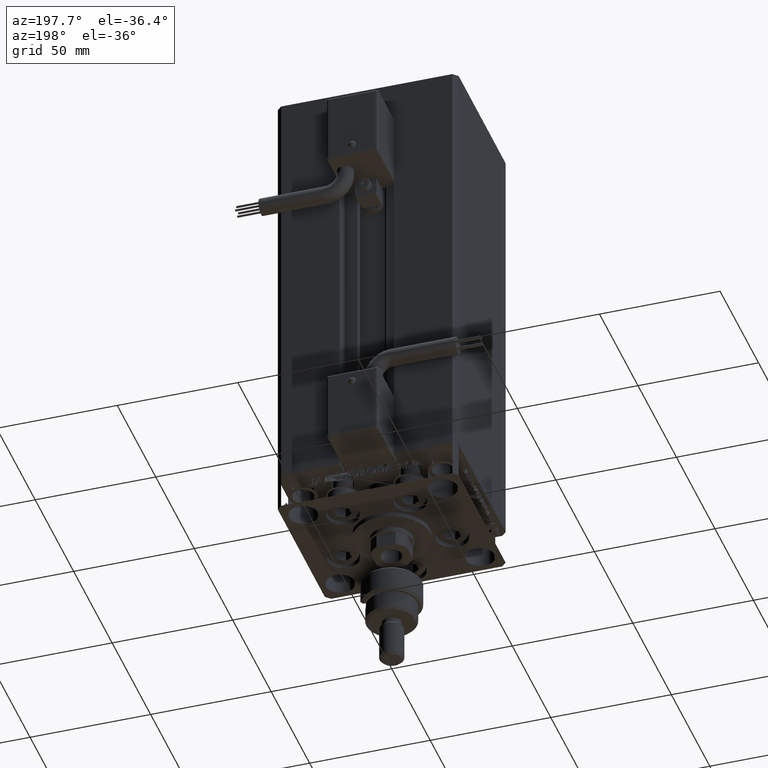
[diagram: clean part render]
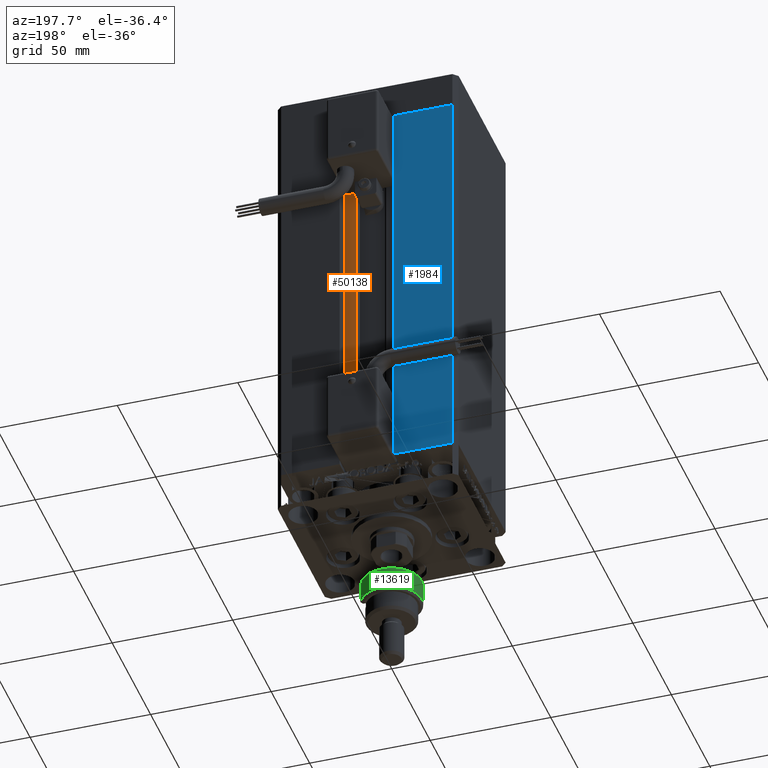
[diagram: same view with three faces highlighted in distinct colors, each labeled with its STEP entity id]
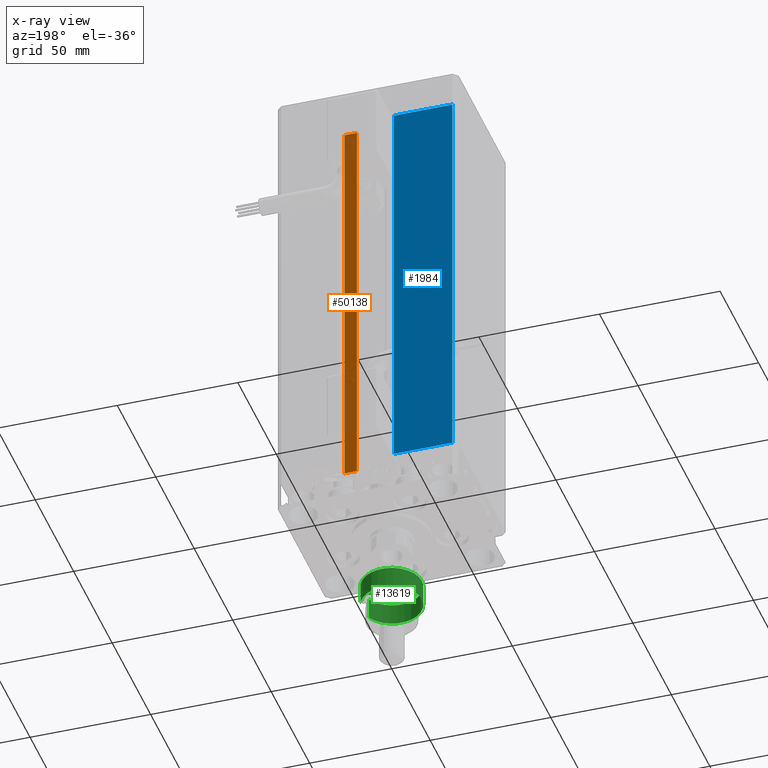
[diagram: x-ray of the same camera — body ghosted, the three highlighted faces saturated]
A machine part, auxiliary view with three faces highlighted in distinct colors.
The next image is the same camera in x-ray (body ghosted, the three faces saturated) — at least one of them is partly hidden behind the body in this view.
Their STEP definitions:

[orange] entity #50138 — the highlighted planar face has unit normal (0, -1, 0).
#411 = CARTESIAN_POINT ( 'NONE',  ( 6.183333333334001480, 25.99999999999999289, 0.000000000000000000 ) ) ;
#1431 = CARTESIAN_POINT ( 'NONE',  ( 6.183333333334001480, 25.99999999999999289, 166.0000000000000000 ) ) ;
#5465 = VERTEX_POINT ( 'NONE', #42511 ) ;
#6368 = VECTOR ( 'NONE', #8491, 1000.000000000000000 ) ;
#7154 = EDGE_CURVE ( 'NONE', #5465, #38649, #12345, .T. ) ;
#8292 = CARTESIAN_POINT ( 'NONE',  ( 6.183333333334001480, 25.99999999999999289, 0.000000000000000000 ) ) ;
#8491 = DIRECTION ( 'NONE',  ( 1.000000000000000000, 0.000000000000000000, 0.000000000000000000 ) ) ;
#8829 = DIRECTION ( 'NONE',  ( -0.000000000000000000, -0.000000000000000000, 1.000000000000000000 ) ) ;
#9480 = EDGE_CURVE ( 'NONE', #25070, #47632, #26131, .T. ) ;
#10361 = ORIENTED_EDGE ( 'NONE', *, *, #25032, .F. ) ;
#10622 = ORIENTED_EDGE ( 'NONE', *, *, #51958, .F. ) ;
#11697 = VECTOR ( 'NONE', #8829, 1000.000000000000000 ) ;
#12345 = LINE ( 'NONE', #8292, #11697 ) ;
#12820 = VECTOR ( 'NONE', #30191, 1000.000000000000000 ) ;
#16602 = ORIENTED_EDGE ( 'NONE', *, *, #7154, .T. ) ;
#17311 = VECTOR ( 'NONE', #44072, 1000.000000000000000 ) ;
#18928 = CARTESIAN_POINT ( 'NONE',  ( 11.25000000000000178, 25.99999999999999289, 166.0000000000000000 ) ) ;
#19913 = PLANE ( 'NONE',  #29287 ) ;
#23961 = FACE_OUTER_BOUND ( 'NONE', #42902, .T. ) ;
#25032 = EDGE_CURVE ( 'NONE', #5465, #25070, #25510, .T. ) ;
#25070 = VERTEX_POINT ( 'NONE', #42011 ) ;
#25510 = LINE ( 'NONE', #411, #6368 ) ;
#26131 = LINE ( 'NONE', #46965, #12820 ) ;
#26455 = ORIENTED_EDGE ( 'NONE', *, *, #9480, .F. ) ;
#29287 = AXIS2_PLACEMENT_3D ( 'NONE', #48857, #44789, #36670 ) ;
#30191 = DIRECTION ( 'NONE',  ( -0.000000000000000000, -0.000000000000000000, 1.000000000000000000 ) ) ;
#31628 = CARTESIAN_POINT ( 'NONE',  ( 0.000000000000000000, 25.99999999999999289, 166.0000000000000000 ) ) ;
#36670 = DIRECTION ( 'NONE',  ( 0.000000000000000000, -0.000000000000000000, -1.000000000000000000 ) ) ;
#38649 = VERTEX_POINT ( 'NONE', #1431 ) ;
#40278 = LINE ( 'NONE', #31628, #17311 ) ;
#42011 = CARTESIAN_POINT ( 'NONE',  ( 11.25000000000000178, 25.99999999999999289, 0.000000000000000000 ) ) ;
#42511 = CARTESIAN_POINT ( 'NONE',  ( 6.183333333334001480, 25.99999999999999289, 0.000000000000000000 ) ) ;
#42902 = EDGE_LOOP ( 'NONE', ( #26455, #10361, #16602, #10622 ) ) ;
#44072 = DIRECTION ( 'NONE',  ( -1.000000000000000000, 0.000000000000000000, 0.000000000000000000 ) ) ;
#44789 = DIRECTION ( 'NONE',  ( 0.000000000000000000, -1.000000000000000000, 0.000000000000000000 ) ) ;
#46965 = CARTESIAN_POINT ( 'NONE',  ( 11.25000000000000178, 25.99999999999999289, 0.000000000000000000 ) ) ;
#47632 = VERTEX_POINT ( 'NONE', #18928 ) ;
#48857 = CARTESIAN_POINT ( 'NONE',  ( 6.183333333334001480, 25.99999999999999289, 0.000000000000000000 ) ) ;
#50138 = ADVANCED_FACE ( 'NONE', ( #23961 ), #19913, .F. ) ;
#51958 = EDGE_CURVE ( 'NONE', #47632, #38649, #40278, .T. ) ;

[blue] entity #1984 — the highlighted planar face has unit normal (0, -1, 0).
#1984 = ADVANCED_FACE ( 'NONE', ( #14127 ), #6034, .F. ) ;
#2304 = DIRECTION ( 'NONE',  ( -1.000000000000000000, 0.000000000000000000, 0.000000000000000000 ) ) ;
#3458 = EDGE_LOOP ( 'NONE', ( #21141, #42592, #9291, #11898 ) ) ;
#6034 = PLANE ( 'NONE',  #28011 ) ;
#6308 = VERTEX_POINT ( 'NONE', #35132 ) ;
#6986 = CARTESIAN_POINT ( 'NONE',  ( -35.50000000000000000, 32.49999999999999289, 166.0000000000000000 ) ) ;
#8990 = VECTOR ( 'NONE', #22262, 1000.000000000000000 ) ;
#9291 = ORIENTED_EDGE ( 'NONE', *, *, #41343, .T. ) ;
#10617 = LINE ( 'NONE', #22537, #8990 ) ;
#11026 = LINE ( 'NONE', #6986, #23481 ) ;
#11553 = DIRECTION ( 'NONE',  ( -0.000000000000000000, -0.000000000000000000, 1.000000000000000000 ) ) ;
#11898 = ORIENTED_EDGE ( 'NONE', *, *, #22036, .F. ) ;
#12353 = CARTESIAN_POINT ( 'NONE',  ( -35.50000000000000000, 32.49999999999999289, 166.0000000000000000 ) ) ;
#14127 = FACE_OUTER_BOUND ( 'NONE', #3458, .T. ) ;
#14656 = VECTOR ( 'NONE', #11553, 1000.000000000000000 ) ;
#15074 = CARTESIAN_POINT ( 'NONE',  ( -11.25000000000000178, 32.49999999999999289, 0.000000000000000000 ) ) ;
#15846 = EDGE_CURVE ( 'NONE', #29505, #26105, #24261, .T. ) ;
#19804 = CARTESIAN_POINT ( 'NONE',  ( -11.25000000000000178, 32.49999999999999289, 166.0000000000000000 ) ) ;
#21141 = ORIENTED_EDGE ( 'NONE', *, *, #26005, .T. ) ;
#22036 = EDGE_CURVE ( 'NONE', #45545, #6308, #11026, .T. ) ;
#22262 = DIRECTION ( 'NONE',  ( 1.000000000000000000, 0.000000000000000000, 0.000000000000000000 ) ) ;
#22537 = CARTESIAN_POINT ( 'NONE',  ( -11.25000000000000178, 32.49999999999999289, 166.0000000000000000 ) ) ;
#23481 = VECTOR ( 'NONE', #35373, 1000.000000000000000 ) ;
#23618 = CARTESIAN_POINT ( 'NONE',  ( -11.25000000000000178, 32.49999999999999289, 0.000000000000000000 ) ) ;
#24261 = LINE ( 'NONE', #15074, #14656 ) ;
#24312 = CARTESIAN_POINT ( 'NONE',  ( -11.25000000000000178, 32.49999999999999289, 0.000000000000000000 ) ) ;
#26005 = EDGE_CURVE ( 'NONE', #45545, #26105, #10617, .T. ) ;
#26105 = VERTEX_POINT ( 'NONE', #19804 ) ;
#28011 = AXIS2_PLACEMENT_3D ( 'NONE', #42524, #46598, #29543 ) ;
#29505 = VERTEX_POINT ( 'NONE', #24312 ) ;
#29543 = DIRECTION ( 'NONE',  ( 0.000000000000000000, -0.000000000000000000, -1.000000000000000000 ) ) ;
#35132 = CARTESIAN_POINT ( 'NONE',  ( -35.50000000000000000, 32.49999999999999289, 0.000000000000000000 ) ) ;
#35373 = DIRECTION ( 'NONE',  ( -0.000000000000000000, -0.000000000000000000, -1.000000000000000000 ) ) ;
#41343 = EDGE_CURVE ( 'NONE', #29505, #6308, #43904, .T. ) ;
#42524 = CARTESIAN_POINT ( 'NONE',  ( -11.25000000000000178, 32.49999999999999289, 166.0000000000000000 ) ) ;
#42592 = ORIENTED_EDGE ( 'NONE', *, *, #15846, .F. ) ;
#42928 = VECTOR ( 'NONE', #2304, 1000.000000000000000 ) ;
#43904 = LINE ( 'NONE', #23618, #42928 ) ;
#45545 = VERTEX_POINT ( 'NONE', #12353 ) ;
#46598 = DIRECTION ( 'NONE',  ( 0.000000000000000000, -1.000000000000000000, 0.000000000000000000 ) ) ;

[green] entity #13619 — the highlighted cylindrical surface (edge-blend (fillet) strip) has radius 12.5 mm, axis along (0, -0, 1).
#2820 = DIRECTION ( 'NONE',  ( 1.000000000000000000, 0.000000000000000000, 0.000000000000000000 ) ) ;
#6524 = DIRECTION ( 'NONE',  ( 1.000000000000000000, 0.000000000000000000, 0.000000000000000000 ) ) ;
#6951 = LINE ( 'NONE', #48322, #39739 ) ;
#7129 = DIRECTION ( 'NONE',  ( -0.000000000000000000, -0.000000000000000000, -1.000000000000000000 ) ) ;
#10672 = ORIENTED_EDGE ( 'NONE', *, *, #52576, .T. ) ;
#10676 = EDGE_CURVE ( 'NONE', #28171, #46752, #13710, .T. ) ;
#10850 = CIRCLE ( 'NONE', #52333, 12.50000000000000000 ) ;
#11803 = DIRECTION ( 'NONE',  ( -0.000000000000000000, -0.000000000000000000, -1.000000000000000000 ) ) ;
#13619 = ADVANCED_FACE ( 'NONE', ( #14961 ), #27920, .T. ) ;
#13710 = CIRCLE ( 'NONE', #20609, 12.50000000000000000 ) ;
#14884 = DIRECTION ( 'NONE',  ( 0.000000000000000000, 0.000000000000000000, -1.000000000000000000 ) ) ;
#14961 = FACE_OUTER_BOUND ( 'NONE', #39927, .T. ) ;
#15492 = DIRECTION ( 'NONE',  ( -0.000000000000000000, -0.000000000000000000, -1.000000000000000000 ) ) ;
#15505 = DIRECTION ( 'NONE',  ( -1.000000000000000000, 0.000000000000000000, 0.000000000000000000 ) ) ;
#15510 = CARTESIAN_POINT ( 'NONE',  ( 0.000000000000000000, 0.000000000000000000, 0.9999999999999956701 ) ) ;
#16736 = CIRCLE ( 'NONE', #34032, 12.50000000000000000 ) ;
#18264 = CARTESIAN_POINT ( 'NONE',  ( 0.000000000000000000, 0.000000000000000000, 0.9999999999999956701 ) ) ;
#18311 = CARTESIAN_POINT ( 'NONE',  ( -11.22497216032182088, -5.500000000000007105, 10.00000000000000000 ) ) ;
#20609 = AXIS2_PLACEMENT_3D ( 'NONE', #15510, #36328, #2820 ) ;
#23172 = ORIENTED_EDGE ( 'NONE', *, *, #10676, .T. ) ;
#23745 = VECTOR ( 'NONE', #15492, 1000.000000000000000 ) ;
#24364 = CARTESIAN_POINT ( 'NONE',  ( -11.22497216032182088, -5.500000000000007105, 0.9999999999999956701 ) ) ;
#24578 = CARTESIAN_POINT ( 'NONE',  ( -11.22497216032182443, 5.500000000000000000, 0.9999999999999956701 ) ) ;
#25594 = VERTEX_POINT ( 'NONE', #24578 ) ;
#27920 = CYLINDRICAL_SURFACE ( 'NONE', #50970, 12.50000000000000000 ) ;
#28171 = VERTEX_POINT ( 'NONE', #24364 ) ;
#29103 = EDGE_CURVE ( 'NONE', #46752, #25594, #16736, .T. ) ;
#31638 = CARTESIAN_POINT ( 'NONE',  ( 0.000000000000000000, 0.000000000000000000, 10.00000000000000000 ) ) ;
#31926 = EDGE_CURVE ( 'NONE', #39670, #25594, #52289, .T. ) ;
#33708 = VERTEX_POINT ( 'NONE', #18311 ) ;
#34032 = AXIS2_PLACEMENT_3D ( 'NONE', #18264, #36009, #52531 ) ;
#36009 = DIRECTION ( 'NONE',  ( -0.000000000000000000, -0.000000000000000000, 1.000000000000000000 ) ) ;
#36010 = ORIENTED_EDGE ( 'NONE', *, *, #31926, .F. ) ;
#36328 = DIRECTION ( 'NONE',  ( -0.000000000000000000, -0.000000000000000000, 1.000000000000000000 ) ) ;
#36891 = ORIENTED_EDGE ( 'NONE', *, *, #38748, .T. ) ;
#38748 = EDGE_CURVE ( 'NONE', #39670, #33708, #10850, .T. ) ;
#39670 = VERTEX_POINT ( 'NONE', #47367 ) ;
#39739 = VECTOR ( 'NONE', #11803, 1000.000000000000000 ) ;
#39927 = EDGE_LOOP ( 'NONE', ( #36010, #36891, #10672, #23172, #48283 ) ) ;
#44435 = CARTESIAN_POINT ( 'NONE',  ( 0.000000000000000000, 0.000000000000000000, 11.00000000000000000 ) ) ;
#46752 = VERTEX_POINT ( 'NONE', #50431 ) ;
#47367 = CARTESIAN_POINT ( 'NONE',  ( -11.22497216032182443, 5.500000000000000000, 10.00000000000000000 ) ) ;
#48283 = ORIENTED_EDGE ( 'NONE', *, *, #29103, .T. ) ;
#48322 = CARTESIAN_POINT ( 'NONE',  ( -11.22497216032182088, -5.500000000000007105, 12.50000000000000000 ) ) ;
#50431 = CARTESIAN_POINT ( 'NONE',  ( 12.50000000000000000, 0.000000000000000000, 0.9999999999999956701 ) ) ;
#50970 = AXIS2_PLACEMENT_3D ( 'NONE', #44435, #7129, #15505 ) ;
#52289 = LINE ( 'NONE', #52561, #23745 ) ;
#52333 = AXIS2_PLACEMENT_3D ( 'NONE', #31638, #14884, #6524 ) ;
#52531 = DIRECTION ( 'NONE',  ( 1.000000000000000000, 0.000000000000000000, 0.000000000000000000 ) ) ;
#52561 = CARTESIAN_POINT ( 'NONE',  ( -11.22497216032182443, 5.500000000000000000, 12.50000000000000000 ) ) ;
#52576 = EDGE_CURVE ( 'NONE', #33708, #28171, #6951, .T. ) ;